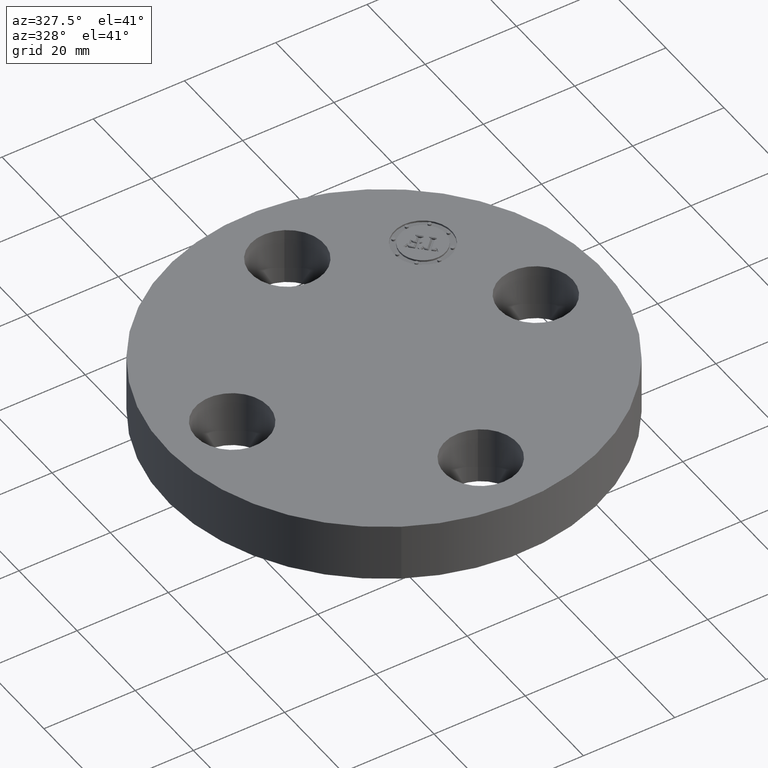
[diagram: clean part render]
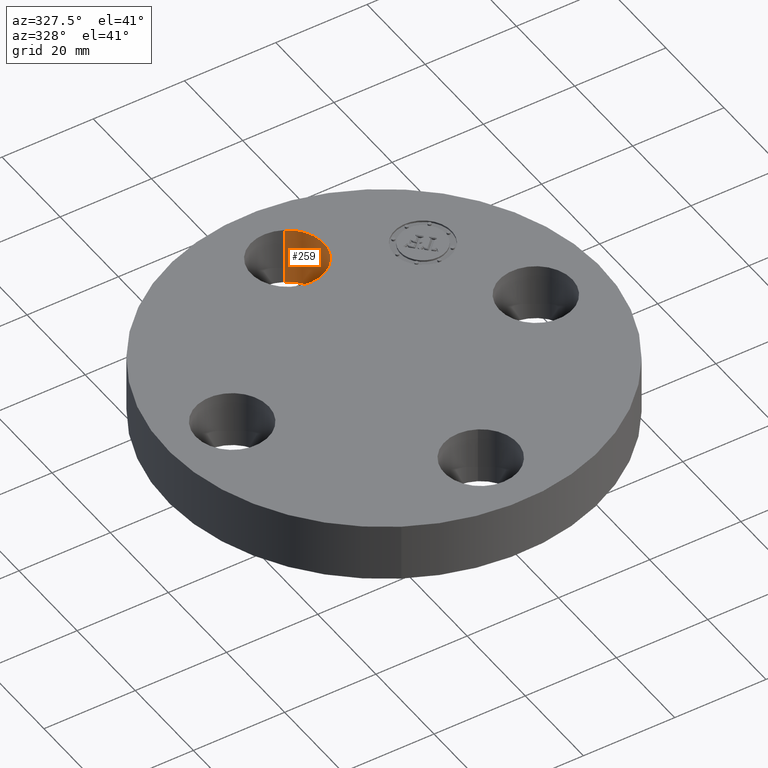
[diagram: same view with one face highlighted and labeled with its STEP entity id]
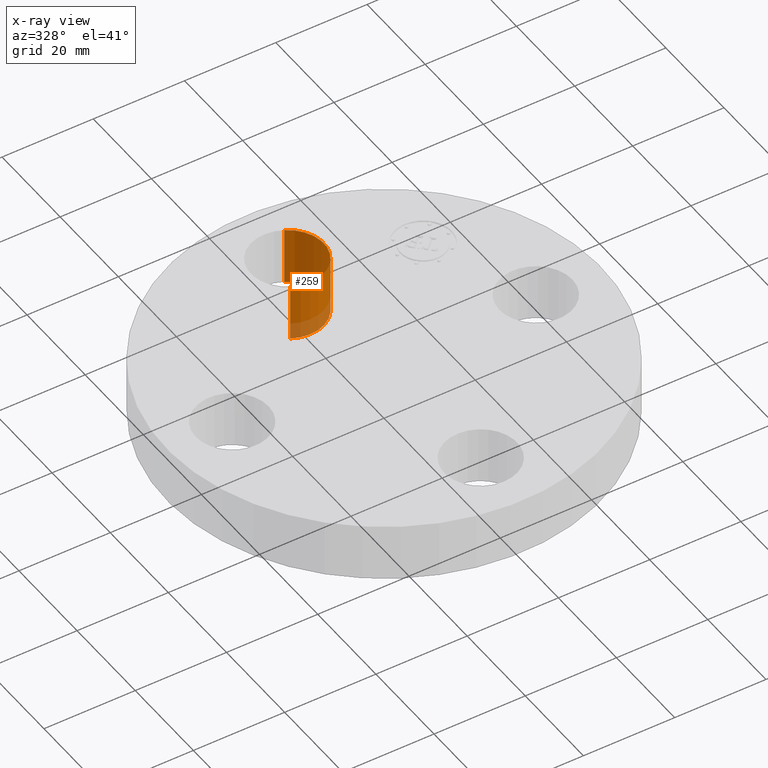
[diagram: x-ray of the same camera — body ghosted, the highlighted face saturated]
A machine part, auxiliary view. The second image highlights one B-rep face of the part: STEP entity #259.
The next image is the same camera in x-ray: the body ghosted, the highlighted face saturated — about 15% of this face is hidden behind the body in this view.
In plain terms, the highlighted cylindrical surface (partial cylindrical patch) has radius 8.001 mm, axis along (0, 0, -1).
Its self-contained STEP definition (entity closure, byte-faithful):
#209=AXIS2_PLACEMENT_3D('Circle Axis2P3D',#207,#208,$) ;
#220=AXIS2_PLACEMENT_3D('Cylinder Axis2P3D',#217,#218,#219) ;
#250=AXIS2_PLACEMENT_3D('Circle Axis2P3D',#248,#249,$) ;
#202=CARTESIAN_POINT('Vertex',(-0.151019044661,1.03356149301,0.)) ;
#204=CARTESIAN_POINT('Vertex',(0.151019044661,1.586438507,0.)) ;
#207=CARTESIAN_POINT('Axis2P3D Location',(-2.79741234551E-016,1.31000000001,0.)) ;
#217=CARTESIAN_POINT('Axis2P3D Location',(-2.40643096033E-016,1.31000000001,0.496062992128)) ;
#222=CARTESIAN_POINT('Line Origine',(-0.151019044661,1.03356149301,0.250000000001)) ;
#226=CARTESIAN_POINT('Vertex',(-0.151019044661,1.03356149301,0.500000000002)) ;
#229=CARTESIAN_POINT('Line Origine',(0.151019044661,1.586438507,0.250000000001)) ;
#233=CARTESIAN_POINT('Vertex',(0.151019044661,1.586438507,0.500000000002)) ;
#248=CARTESIAN_POINT('Axis2P3D Location',(-2.40643096033E-016,1.31000000001,0.500000000002)) ;
#208=DIRECTION('Axis2P3D Direction',(0.,0.,-0.0393700787402)) ;
#218=DIRECTION('Axis2P3D Direction',(0.,0.,-0.0393700787402)) ;
#219=DIRECTION('Axis2P3D XDirection',(0.0188750212049,0.0345504945626,0.)) ;
#223=DIRECTION('Vector Direction',(0.,0.,-0.0393700787402)) ;
#230=DIRECTION('Vector Direction',(0.,0.,-0.0393700787402)) ;
#249=DIRECTION('Axis2P3D Direction',(0.,0.,-0.0393700787402)) ;
#224=VECTOR('Line Direction',#223,0.0393700787402) ;
#231=VECTOR('Line Direction',#230,0.0393700787402) ;
#254=ORIENTED_EDGE('',*,*,#235,.F.) ;
#255=ORIENTED_EDGE('',*,*,#211,.T.) ;
#256=ORIENTED_EDGE('',*,*,#228,.T.) ;
#257=ORIENTED_EDGE('',*,*,#252,.F.) ;
#259=ADVANCED_FACE('PartBody',(#258),#221,.F.) ;
#210=CIRCLE('generated circle',#209,0.315000000001) ;
#251=CIRCLE('generated circle',#250,0.315000000001) ;
#221=CYLINDRICAL_SURFACE('generated cylinder',#220,0.315000000001) ;
#211=EDGE_CURVE('',#205,#203,#210,.T.) ;
#228=EDGE_CURVE('',#203,#227,#225,.F.) ;
#235=EDGE_CURVE('',#205,#234,#232,.F.) ;
#252=EDGE_CURVE('',#234,#227,#251,.T.) ;
#253=EDGE_LOOP('',(#254,#255,#256,#257)) ;
#258=FACE_OUTER_BOUND('',#253,.T.) ;
#225=LINE('Line',#222,#224) ;
#232=LINE('Line',#229,#231) ;
#203=VERTEX_POINT('',#202) ;
#205=VERTEX_POINT('',#204) ;
#227=VERTEX_POINT('',#226) ;
#234=VERTEX_POINT('',#233) ;